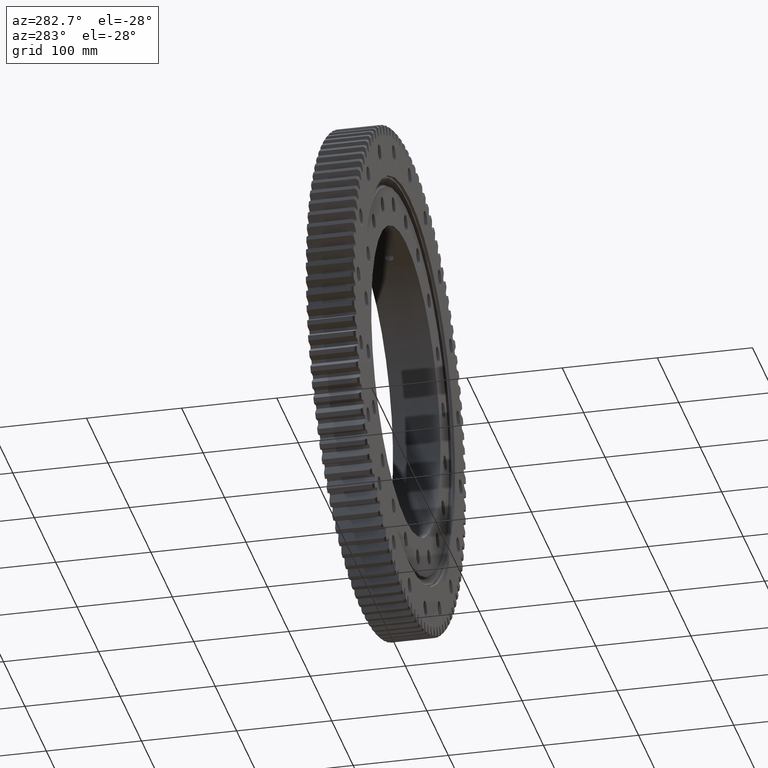
[diagram: clean part render]
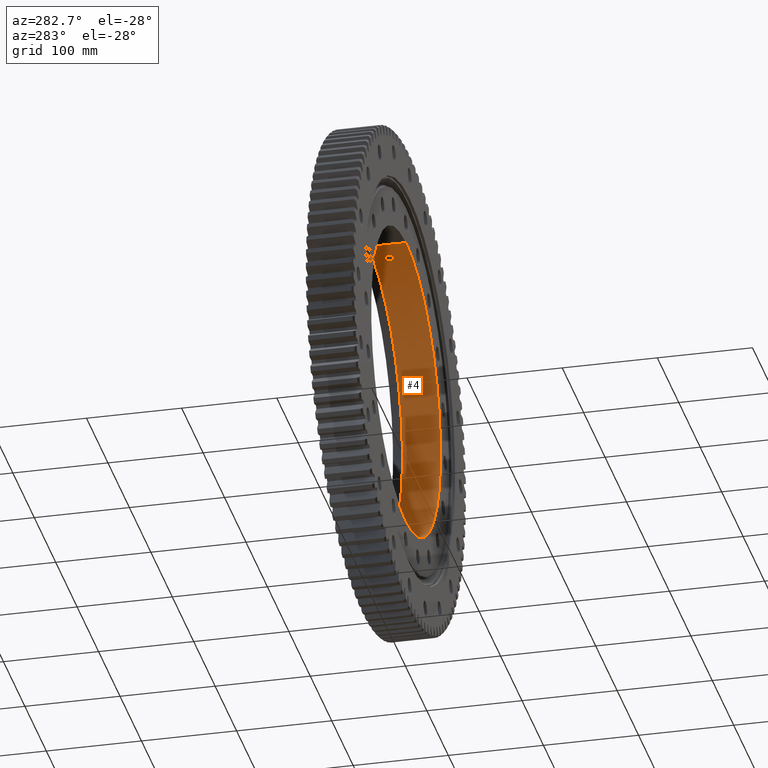
[diagram: same view with one face highlighted and labeled with its STEP entity id]
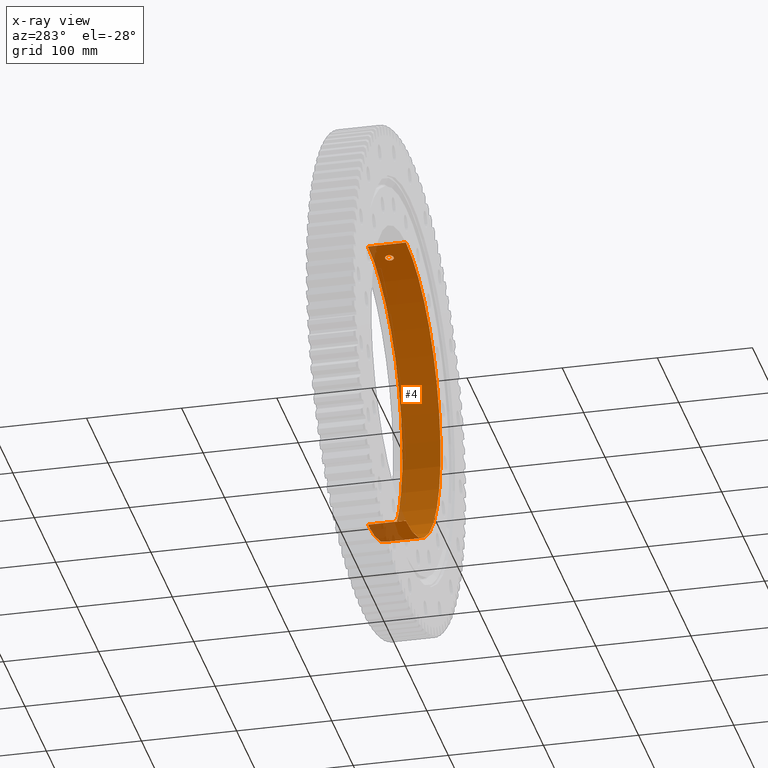
[diagram: x-ray of the same camera — body ghosted, the highlighted face saturated]
A machine part, auxiliary view. The second image highlights one B-rep face of the part: STEP entity #4.
The next image is the same camera in x-ray: the body ghosted, the highlighted face saturated — about 5% of this face is hidden behind the body in this view.
In plain terms, the highlighted cylindrical surface (partial cylindrical patch) has radius 161.5 mm, axis along (-0, 1, -0).
Its self-contained STEP definition (entity closure, byte-faithful):
#4 = ADVANCED_FACE ( 'NONE', ( #16438, #10964 ), #10337, .F. ) ;
#38 = DIRECTION ( 'NONE',  ( 0.0000000000000000000, 2.148264366534745200E-017, 1.000000000000000000 ) ) ;
#429 = EDGE_LOOP ( 'NONE', ( #5035, #8302 ) ) ;
#1339 = CARTESIAN_POINT ( 'NONE',  ( 29.69895430844762500, 2.466471380579926000E-009, 158.7457782524774600 ) ) ;
#1423 = VERTEX_POINT ( 'NONE', #6070 ) ;
#1425 = CARTESIAN_POINT ( 'NONE',  ( 29.55782410583675100, 1.164910351997480600, 158.7721269764344900 ) ) ;
#1443 = CARTESIAN_POINT ( 'NONE',  ( 22.54864650917675600, -3.577393330148437300, 159.9183179540360400 ) ) ;
#1516 = CARTESIAN_POINT ( 'NONE',  ( 25.55565187172192400, 4.499895516189119400, 159.4654972482582000 ) ) ;
#1533 = CARTESIAN_POINT ( 'NONE',  ( 27.96689687988153500, -3.581663156272481900, 159.0602478916249500 ) ) ;
#1608 = CARTESIAN_POINT ( 'NONE',  ( 21.03742953427080700, 1.449164384115706700, 160.1239810987605700 ) ) ;
#1652 = CARTESIAN_POINT ( 'NONE',  ( 0.0000000000000000000, 16.99999999999997500, 161.5000000000000300 ) ) ;
#1666 = LINE ( 'NONE', #18315, #11904 ) ;
#2155 = EDGE_LOOP ( 'NONE', ( #22413, #11361, #20072, #17936 ) ) ;
#3487 = CARTESIAN_POINT ( 'NONE',  ( 29.25048180549852000, 1.995725530503522900, 158.8290656115318300 ) ) ;
#3508 = CARTESIAN_POINT ( 'NONE',  ( 23.28883970878712600, -4.042853039694732900, 159.8122459745445100 ) ) ;
#3576 = CARTESIAN_POINT ( 'NONE',  ( 24.68124834447720800, 4.470841366302266800, 159.6031618352972100 ) ) ;
#3590 = CARTESIAN_POINT ( 'NONE',  ( 28.60448154129739600, -2.976694656340079300, 158.9467736338176300 ) ) ;
#3661 = CARTESIAN_POINT ( 'NONE',  ( 20.83895666133739200, 0.5919789344907916400, 160.1499022644626100 ) ) ;
#3989 = CARTESIAN_POINT ( 'NONE',  ( 0.0000000000000000000, 16.99999999999997500, -1.309784740384097100E-015 ) ) ;
#4600 = AXIS2_PLACEMENT_3D ( 'NONE', #10759, #4814, #9292 ) ;
#4814 = DIRECTION ( 'NONE',  ( -0.0000000000000000000, 1.000000000000000000, -2.727064569436389700E-017 ) ) ;
#5035 = ORIENTED_EDGE ( 'NONE', *, *, #8372, .T. ) ;
#5479 = CARTESIAN_POINT ( 'NONE',  ( 20.80975924309142800, -0.2936357663318621700, 160.1536884378395800 ) ) ;
#5536 = CARTESIAN_POINT ( 'NONE',  ( 28.79305189743339400, 2.743397997785411000, 158.9126705080203100 ) ) ;
#5556 = CARTESIAN_POINT ( 'NONE',  ( 24.11013972096192500, -4.355718662446690800, 159.6904313906800000 ) ) ;
#5627 = CARTESIAN_POINT ( 'NONE',  ( 23.83324146728883300, 4.270934353486721200, 159.7319655746280200 ) ) ;
#5647 = CARTESIAN_POINT ( 'NONE',  ( 29.11152626881697700, -2.259561425657830900, 158.8546382537131200 ) ) ;
#5719 = CARTESIAN_POINT ( 'NONE',  ( 20.80975924309142400, 2.466470246215418100E-009, 160.1536884378395500 ) ) ;
#6054 = DIRECTION ( 'NONE',  ( 0.0000000000000000000, 0.0000000000000000000, 1.000000000000000000 ) ) ;
#6070 = CARTESIAN_POINT ( 'NONE',  ( 1.977804580622976100E-014, -23.00000000000002500, -161.5000000000000300 ) ) ;
#6114 = CARTESIAN_POINT ( 'NONE',  ( 1.977804580622976100E-014, 16.99999999999997500, -161.5000000000000300 ) ) ;
#6961 = VERTEX_POINT ( 'NONE', #15737 ) ;
#7552 = CARTESIAN_POINT ( 'NONE',  ( 20.95211368801431800, -1.165483760409465700, 160.1351374402155700 ) ) ;
#7622 = CARTESIAN_POINT ( 'NONE',  ( 28.19707207426906200, 3.390105886781567900, 159.0195530529137800 ) ) ;
#7638 = CARTESIAN_POINT ( 'NONE',  ( 24.96736335094623300, -4.499750075392132200, 159.5586688934668300 ) ) ;
#7705 = CARTESIAN_POINT ( 'NONE',  ( 23.03334219590303500, 3.904576856873333700, 159.8492246372653700 ) ) ;
#7720 = CARTESIAN_POINT ( 'NONE',  ( 29.47088196483602500, -1.455806011042559900, 158.7883174742065400 ) ) ;
#8302 = ORIENTED_EDGE ( 'NONE', *, *, #19257, .T. ) ;
#8372 = EDGE_CURVE ( 'NONE', #19072, #6961, #20489, .T. ) ;
#8471 = VECTOR ( 'NONE', #23216, 1000.000000000000000 ) ;
#9090 = EDGE_CURVE ( 'NONE', #26110, #1423, #16191, .T. ) ;
#9292 = DIRECTION ( 'NONE',  ( 0.0000000000000000000, 2.148264366534745200E-017, 1.000000000000000000 ) ) ;
#9606 = CARTESIAN_POINT ( 'NONE',  ( 21.26008839019567600, -1.991489480131338800, 160.0945695726948900 ) ) ;
#9676 = CARTESIAN_POINT ( 'NONE',  ( 27.48917056519015000, 3.905332659854412900, 159.1435076605436100 ) ) ;
#9693 = CARTESIAN_POINT ( 'NONE',  ( 25.84336474953366600, -4.471226369305726100, 159.4191116591219100 ) ) ;
#9760 = CARTESIAN_POINT ( 'NONE',  ( 22.32536603825290600, 3.392735534284218300, 159.9495926508087400 ) ) ;
#9781 = CARTESIAN_POINT ( 'NONE',  ( 29.67027082633080300, -0.5914500211783053600, 158.7511525034863700 ) ) ;
#9825 = AXIS2_PLACEMENT_3D ( 'NONE', #3989, #18317, #6054 ) ;
#10337 = CYLINDRICAL_SURFACE ( 'NONE', #4600, 161.5000000000000300 ) ;
#10759 = CARTESIAN_POINT ( 'NONE',  ( 0.0000000000000000000, 31.02910628019324300, -1.692367527159823000E-015 ) ) ;
#10964 = FACE_BOUND ( 'NONE', #429, .T. ) ;
#11361 = ORIENTED_EDGE ( 'NONE', *, *, #9090, .F. ) ;
#11425 = EDGE_CURVE ( 'NONE', #23675, #17274, #17213, .T. ) ;
#11634 = CARTESIAN_POINT ( 'NONE',  ( 21.72428304250578900, -2.745458595419108000, 160.0322861720120200 ) ) ;
#11711 = CARTESIAN_POINT ( 'NONE',  ( 26.69699844125169000, 4.269485407865827800, 159.2783525957448800 ) ) ;
#11733 = CARTESIAN_POINT ( 'NONE',  ( 26.69214901956523200, -4.271305956002684000, 159.2791689453534600 ) ) ;
#11800 = CARTESIAN_POINT ( 'NONE',  ( 21.72417032104401700, 2.744974229059087300, 160.0322998398784500 ) ) ;
#11818 = CARTESIAN_POINT ( 'NONE',  ( 29.69895430844762500, 2.466471380579926000E-009, 158.7457782524774600 ) ) ;
#11904 = VECTOR ( 'NONE', #12212, 1000.000000000000000 ) ;
#12212 = DIRECTION ( 'NONE',  ( -0.0000000000000000000, 1.000000000000000000, -2.727064569436389700E-017 ) ) ;
#12287 = DIRECTION ( 'NONE',  ( -0.0000000000000000000, 1.000000000000000000, -2.727064569436389700E-017 ) ) ;
#13686 = CARTESIAN_POINT ( 'NONE',  ( 29.67026120532785100, 0.5897096985171704800, 158.7511539186417100 ) ) ;
#13705 = CARTESIAN_POINT ( 'NONE',  ( 22.31960998060622400, -3.387316171405248400, 159.9503922919297200 ) ) ;
#13780 = CARTESIAN_POINT ( 'NONE',  ( 25.84394865792441100, 4.471351029772641500, 159.4190223732476600 ) ) ;
#13796 = CARTESIAN_POINT ( 'NONE',  ( 27.48515627541571100, -3.907521219040580400, 159.1441986531431200 ) ) ;
#13857 = CARTESIAN_POINT ( 'NONE',  ( 21.26144224180388400, 1.994572745724031200, 160.0943904018004100 ) ) ;
#14373 = B_SPLINE_CURVE_WITH_KNOTS ( 'NONE', 3,
 ( #25893, #5479, #19814, #7552, #21873, #9606, #23947, #11634, #25982, #13705, #1443, #15771, #3508, #17830, #5556, #19906, #7638, #21960, #9693, #24034, #11733, #26066, #13796, #1533, #15870, #3590, #17922, #5647, #19993, #7720, #22058, #9781, #24112, #11818 ),
 .UNSPECIFIED., .F., .F.,
 ( 4, 2, 2, 2, 2, 2, 2, 2, 2, 2, 2, 2, 2, 2, 2, 2, 4 ),
 ( 0.01406973721624471400, 0.01494889674372392900, 0.01582805627120314300, 0.01670721579868236100, 0.01758637532616157500, 0.01846553485364078900, 0.01934469438112000600, 0.02022385390859922000, 0.02110301343607843400, 0.02198217296355765200, 0.02286133249103686600, 0.02374049201851607900, 0.02461965154599529700, 0.02549881107347451100, 0.02637797060095372500, 0.02725713012843294200, 0.02813628965591215600 ),
 .UNSPECIFIED. ) ;
#15737 = CARTESIAN_POINT ( 'NONE',  ( 20.80975924309142400, 2.466470246215418100E-009, 160.1536884378395500 ) ) ;
#15760 = CARTESIAN_POINT ( 'NONE',  ( 29.47271441090153800, 1.450722392081840400, 158.7879777380501600 ) ) ;
#15771 = CARTESIAN_POINT ( 'NONE',  ( 23.03314298085657100, -3.904539866549034500, 159.8492546153011600 ) ) ;
#15846 = CARTESIAN_POINT ( 'NONE',  ( 24.97583606943949500, 4.500103921607522000, 159.5573369289403200 ) ) ;
#15870 = CARTESIAN_POINT ( 'NONE',  ( 28.19520628176980300, -3.391778797230700100, 159.0198841515579600 ) ) ;
#15942 = CARTESIAN_POINT ( 'NONE',  ( 20.95305550358065000, 1.168608722567334700, 160.1350142071180800 ) ) ;
#16191 = CIRCLE ( 'NONE', #17152, 161.5000000000000300 ) ;
#16438 = FACE_OUTER_BOUND ( 'NONE', #2155, .T. ) ;
#16684 = CARTESIAN_POINT ( 'NONE',  ( 29.69895430844762500, 2.466471380579926000E-009, 158.7457782524774600 ) ) ;
#17118 = CARTESIAN_POINT ( 'NONE',  ( 0.0000000000000000000, 31.02910628019324700, 161.5000000000000300 ) ) ;
#17152 = AXIS2_PLACEMENT_3D ( 'NONE', #24588, #12287, #38 ) ;
#17213 = CIRCLE ( 'NONE', #9825, 161.5000000000000300 ) ;
#17274 = VERTEX_POINT ( 'NONE', #1652 ) ;
#17726 = CARTESIAN_POINT ( 'NONE',  ( 0.0000000000000000000, -23.00000000000001800, 161.5000000000000300 ) ) ;
#17811 = CARTESIAN_POINT ( 'NONE',  ( 29.11447278875330700, 2.254209667460678600, 158.8540970821711400 ) ) ;
#17830 = CARTESIAN_POINT ( 'NONE',  ( 23.82714610317723800, -4.268823769115379600, 159.7328742838735100 ) ) ;
#17903 = CARTESIAN_POINT ( 'NONE',  ( 24.11067968258219100, 4.355931912010119900, 159.6903516587953800 ) ) ;
#17922 = CARTESIAN_POINT ( 'NONE',  ( 28.78787812370552100, -2.750382892067546200, 158.9136090130507700 ) ) ;
#17936 = ORIENTED_EDGE ( 'NONE', *, *, #11425, .F. ) ;
#17989 = CARTESIAN_POINT ( 'NONE',  ( 20.80975924309142800, 0.2937022526803969000, 160.1536884378395800 ) ) ;
#18315 = CARTESIAN_POINT ( 'NONE',  ( 1.977804580622976100E-014, 31.02910628019324000, -161.5000000000000300 ) ) ;
#18317 = DIRECTION ( 'NONE',  ( 0.0000000000000000000, -1.000000000000000000, 0.0000000000000000000 ) ) ;
#19072 = VERTEX_POINT ( 'NONE', #16684 ) ;
#19257 = EDGE_CURVE ( 'NONE', #6961, #19072, #14373, .T. ) ;
#19794 = CARTESIAN_POINT ( 'NONE',  ( 29.69895430844763600, 0.2973409502969404600, 158.7457782524774400 ) ) ;
#19814 = CARTESIAN_POINT ( 'NONE',  ( 20.83799852007421900, -0.5854745633524847100, 160.1500269393346200 ) ) ;
#19886 = CARTESIAN_POINT ( 'NONE',  ( 28.60593846125807700, 2.974995915188678500, 158.9465111647962500 ) ) ;
#19906 = CARTESIAN_POINT ( 'NONE',  ( 24.67874464529558400, -4.470441071252239800, 159.6035471969156300 ) ) ;
#19972 = CARTESIAN_POINT ( 'NONE',  ( 23.29418659355171400, 4.045536287277451800, 159.8114673486137700 ) ) ;
#19993 = CARTESIAN_POINT ( 'NONE',  ( 29.24968534728260700, -1.997081967853923800, 158.8292119138027900 ) ) ;
#20072 = ORIENTED_EDGE ( 'NONE', *, *, #23134, .T. ) ;
#20489 = B_SPLINE_CURVE_WITH_KNOTS ( 'NONE', 3,
 ( #1339, #19794, #13686, #1425, #15760, #3487, #17811, #5536, #19886, #7622, #21942, #9676, #24015, #11711, #26048, #13780, #1516, #15846, #3576, #17903, #5627, #19972, #7705, #22040, #9760, #24100, #11800, #26141, #13857, #1608, #15942, #3661, #17989, #5719 ),
 .UNSPECIFIED., .F., .F.,
 ( 4, 2, 2, 2, 2, 2, 2, 2, 2, 2, 2, 2, 2, 2, 2, 2, 4 ),
 ( 3.331631670448957900E-018, 0.0008793585760152977500, 0.001758717152030592000, 0.002638075728045886700, 0.003517434304061181000, 0.004396792880076475300, 0.005276151456091770000, 0.006155510032107063900, 0.007034868608122358600, 0.007914227184137652400, 0.008793585760152947100, 0.009672944336168241800, 0.01055230291218353700, 0.01143166148819883100, 0.01231102006421412400, 0.01319037864022941900, 0.01406973721624471400 ),
 .UNSPECIFIED. ) ;
#21873 = CARTESIAN_POINT ( 'NONE',  ( 21.03783132618085700, -1.449928726436612700, 160.1239276876399100 ) ) ;
#21942 = CARTESIAN_POINT ( 'NONE',  ( 27.97391446613788800, 3.576377444493212800, 159.0590162119230800 ) ) ;
#21960 = CARTESIAN_POINT ( 'NONE',  ( 25.55352922460538100, -4.500246767652196700, 159.4658433518613900 ) ) ;
#22040 = CARTESIAN_POINT ( 'NONE',  ( 22.55049477829469500, 3.578738459621470600, 159.9180560634182800 ) ) ;
#22058 = CARTESIAN_POINT ( 'NONE',  ( 29.55576240023474100, -1.173635524325773700, 158.7725111630910800 ) ) ;
#22413 = ORIENTED_EDGE ( 'NONE', *, *, #24771, .F. ) ;
#23134 = EDGE_CURVE ( 'NONE', #26110, #17274, #26103, .T. ) ;
#23216 = DIRECTION ( 'NONE',  ( -0.0000000000000000000, 1.000000000000000000, -2.727064569436389700E-017 ) ) ;
#23675 = VERTEX_POINT ( 'NONE', #6114 ) ;
#23947 = CARTESIAN_POINT ( 'NONE',  ( 21.39804211624415600, -2.252636146433643300, 160.0762346032136600 ) ) ;
#24015 = CARTESIAN_POINT ( 'NONE',  ( 27.23099182690545600, 4.045101421311573000, 159.1879279829649900 ) ) ;
#24034 = CARTESIAN_POINT ( 'NONE',  ( 26.41081619018992700, -4.357369680839687100, 159.3260852840143400 ) ) ;
#24100 = CARTESIAN_POINT ( 'NONE',  ( 21.90905018195933700, 2.972741634246831600, 160.0071488341255900 ) ) ;
#24112 = CARTESIAN_POINT ( 'NONE',  ( 29.69895430844764300, -0.2972736403055227800, 158.7457782524774600 ) ) ;
#24588 = CARTESIAN_POINT ( 'NONE',  ( 0.0000000000000000000, -23.00000000000002100, -2.189589126095412600E-016 ) ) ;
#24771 = EDGE_CURVE ( 'NONE', #1423, #23675, #1666, .T. ) ;
#25893 = CARTESIAN_POINT ( 'NONE',  ( 20.80975924309142400, 2.466470246215418100E-009, 160.1536884378395500 ) ) ;
#25982 = CARTESIAN_POINT ( 'NONE',  ( 21.90886391547992000, -2.972160519262577500, 160.0071706704470400 ) ) ;
#26048 = CARTESIAN_POINT ( 'NONE',  ( 26.41724709847951400, 4.355834560695602600, 159.3250245015306300 ) ) ;
#26066 = CARTESIAN_POINT ( 'NONE',  ( 27.23030692390559800, -4.045604163922441800, 159.1880487474956000 ) ) ;
#26103 = LINE ( 'NONE', #17118, #8471 ) ;
#26110 = VERTEX_POINT ( 'NONE', #17726 ) ;
#26141 = CARTESIAN_POINT ( 'NONE',  ( 21.40109405065790300, 2.257557678119406700, 160.0758249755826600 ) ) ;